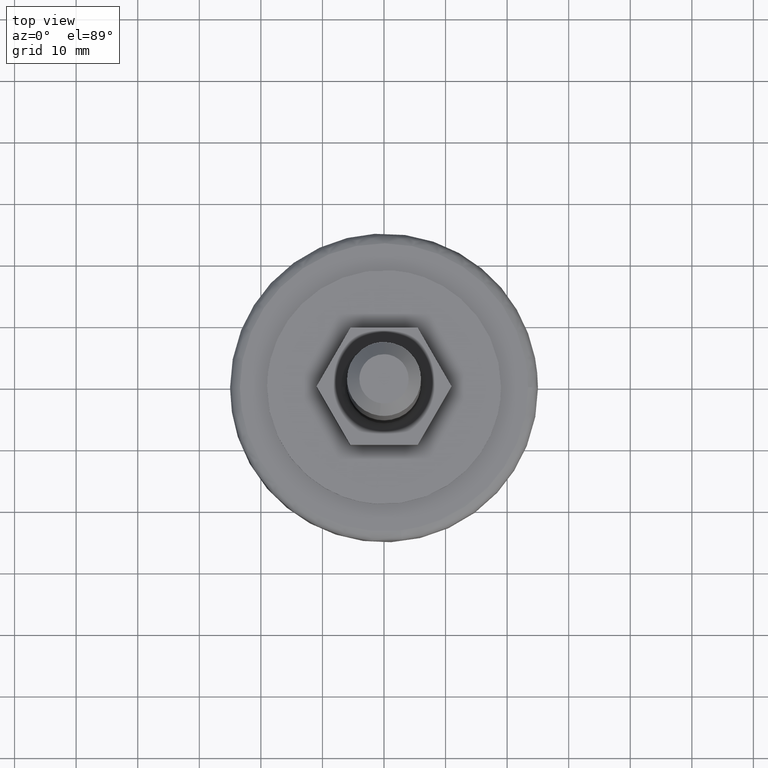
[diagram: clean part render]
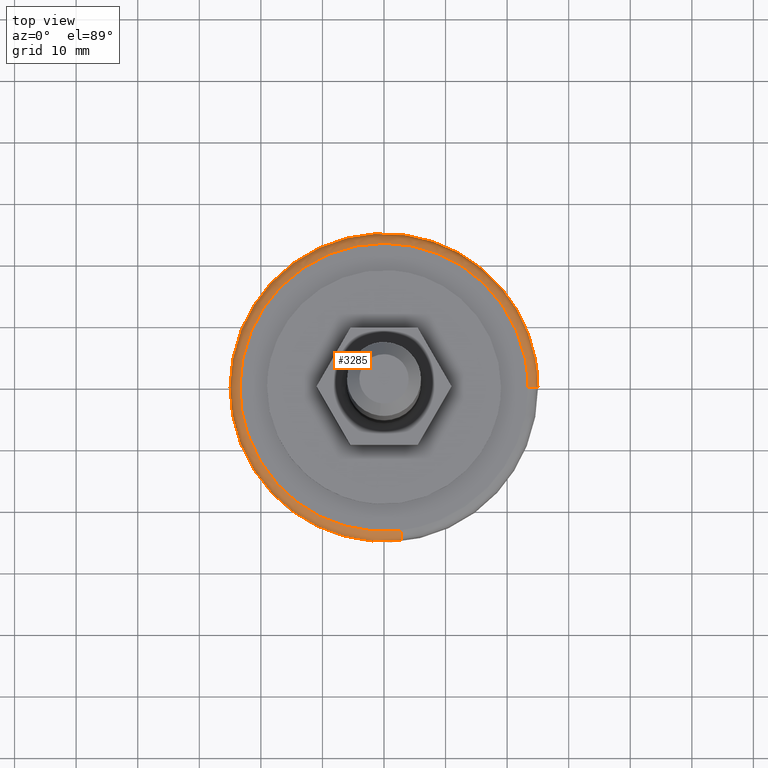
[diagram: same view with one face highlighted and labeled with its STEP entity id]
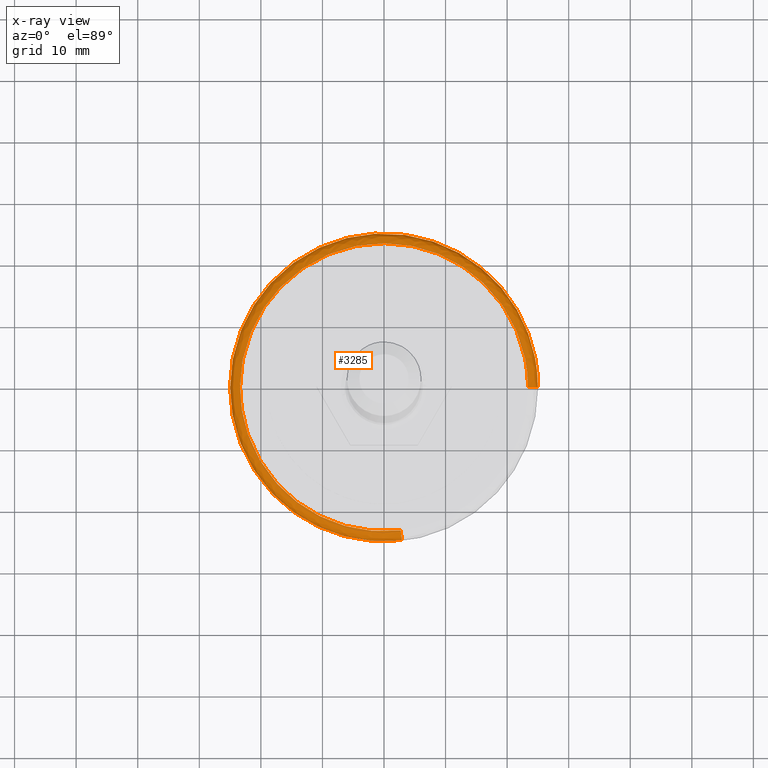
[diagram: x-ray of the same camera — body ghosted, the highlighted face saturated]
A machine part, top view. The second image highlights one B-rep face of the part: STEP entity #3285.
The next image is the same camera in x-ray: the body ghosted, the highlighted face saturated — about 0% of this face is hidden behind the body in this view.
In plain terms, the highlighted face is a freeform B-spline surface patch.
Its self-contained STEP definition (entity closure, byte-faithful):
#2635=CARTESIAN_POINT('',(23.403593343529121,8.790439045383224,14.900000000046250));
#2636=VERTEX_POINT('',#2635);
#2637=CARTESIAN_POINT('',(25.0,0.0,14.900000000071669));
#2638=VERTEX_POINT('',#2637);
#2639=CARTESIAN_POINT('',(23.403593343529113,8.790439045383224,14.900000000046250));
#2640=CARTESIAN_POINT('',(24.999999999999993,4.540178960989693,14.900000000058618));
#2641=CARTESIAN_POINT('',(25.0,0.0,14.900000000071669));
#2649=(BOUNDED_CURVE()B_SPLINE_CURVE(2,(#2639,#2640,#2641),.UNSPECIFIED.,.F.,.U.)B_SPLINE_CURVE_WITH_KNOTS((3,3),(0.440284240510419,0.500000000000000),.UNSPECIFIED.)CURVE()GEOMETRIC_REPRESENTATION_ITEM()RATIONAL_B_SPLINE_CURVE((0.893499639823775,0.930038635956827,1.0))REPRESENTATION_ITEM(''));
#2650=EDGE_CURVE('',#2636,#2638,#2649,.T.);
#2652=CARTESIAN_POINT('',(2.886605733205624,-24.832790969623691,14.900000000059940));
#2653=VERTEX_POINT('',#2652);
#2667=CARTESIAN_POINT('',(-25.0,0.0,14.899999999999800));
#2668=VERTEX_POINT('',#2667);
#2669=CARTESIAN_POINT('',(2.886605733205624,-24.832790969623691,14.900000000059942));
#2670=CARTESIAN_POINT('',(1.448145727475993,-25.0,14.899999999999805));
#2671=CARTESIAN_POINT('',(0.0,-25.0,14.899999999999800));
#2672=CARTESIAN_POINT('',(-25.000000000000004,-25.000000000000004,14.899999999999807));
#2673=CARTESIAN_POINT('',(-25.0,0.0,14.899999999999800));
#2681=(BOUNDED_CURVE()B_SPLINE_CURVE(2,(#2669,#2670,#2671,#2672,#2673),.UNSPECIFIED.,.F.,.U.)B_SPLINE_CURVE_WITH_KNOTS((3,2,3),(0.729999999999608,0.750000000000000,1.0),.UNSPECIFIED.)CURVE()GEOMETRIC_REPRESENTATION_ITEM()RATIONAL_B_SPLINE_CURVE((0.956886118189888,0.976568542494464,1.0,0.707106781186547,1.0))REPRESENTATION_ITEM(''));
#2682=EDGE_CURVE('',#2653,#2668,#2681,.T.);
#2684=CARTESIAN_POINT('',(-1.526193271428666,24.953371197051428,14.900000000000020));
#2685=VERTEX_POINT('',#2684);
#2686=CARTESIAN_POINT('',(-25.0,0.0,14.899999999999800));
#2687=CARTESIAN_POINT('',(-25.000000000000004,23.517670761993944,14.899999999999794));
#2688=CARTESIAN_POINT('',(-1.526193271428666,24.953371197051425,14.900000000000013));
#2696=(BOUNDED_CURVE()B_SPLINE_CURVE(2,(#2686,#2687,#2688),.UNSPECIFIED.,.F.,.U.)B_SPLINE_CURVE_WITH_KNOTS((3,3),(0.0,0.239333102037472),.UNSPECIFIED.)CURVE()GEOMETRIC_REPRESENTATION_ITEM()RATIONAL_B_SPLINE_CURVE((1.0,0.719603829502545,0.976072341281762))REPRESENTATION_ITEM(''));
#2697=EDGE_CURVE('',#2668,#2685,#2696,.T.);
#2775=CARTESIAN_POINT('',(-1.526193271428666,24.953371197051425,14.900000000000013));
#2776=CARTESIAN_POINT('',(-0.763808945650802,25.000000000000004,14.899999999999798));
#2777=CARTESIAN_POINT('',(0.0,25.0,14.899999999999800));
#2778=CARTESIAN_POINT('',(17.315248044053167,24.999999999999996,14.899999999999801));
#2779=CARTESIAN_POINT('',(23.403593343529113,8.790439045383224,14.900000000046250));
#2787=(BOUNDED_CURVE()B_SPLINE_CURVE(2,(#2775,#2776,#2777,#2778,#2779),.UNSPECIFIED.,.F.,.U.)B_SPLINE_CURVE_WITH_KNOTS((3,2,3),(0.239333102037472,0.250000000000000,0.440284240510419),.UNSPECIFIED.)CURVE()GEOMETRIC_REPRESENTATION_ITEM()RATIONAL_B_SPLINE_CURVE((0.976072341281762,0.987502951684003,1.0,0.777068145229720,0.893499639823775))REPRESENTATION_ITEM(''));
#2788=EDGE_CURVE('',#2685,#2636,#2787,.T.);
#3182=CARTESIAN_POINT('',(2.689048295053789,-23.133273484862499,16.496147733297967));
#3183=CARTESIAN_POINT('',(1.349035557294534,-23.289038684724051,16.496147733297974));
#3184=CARTESIAN_POINT('',(2.851990E-015,-23.289038684724058,16.496147733297963));
#3185=CARTESIAN_POINT('',(-23.289038684724055,-23.289038684724055,16.496147733297960));
#3186=CARTESIAN_POINT('',(-23.289038684724058,-4.277986E-015,16.496147733297963));
#3187=CARTESIAN_POINT('',(-23.289038684724055,23.289038684724055,16.496147733297960));
#3188=CARTESIAN_POINT('',(-5.703981E-015,23.289038684724058,16.496147733297963));
#3189=CARTESIAN_POINT('',(23.289038684724055,23.289038684724069,16.496147733297960));
#3190=CARTESIAN_POINT('',(23.289038684724058,7.129976E-015,16.496147733297963));
#3191=CARTESIAN_POINT('',(2.900964750253706,-24.956342755540739,16.623737590489640));
#3192=CARTESIAN_POINT('',(1.455349316614644,-25.124383379781584,16.623737590489633));
#3193=CARTESIAN_POINT('',(3.076748E-015,-25.124383379781587,16.623737590489636));
#3194=CARTESIAN_POINT('',(-25.124383379781577,-25.124383379781577,16.623737590489636));
#3195=CARTESIAN_POINT('',(-25.124383379781587,-4.615122E-015,16.623737590489636));
#3196=CARTESIAN_POINT('',(-25.124383379781577,25.124383379781577,16.623737590489636));
#3197=CARTESIAN_POINT('',(-6.153496E-015,25.124383379781587,16.623737590489636));
#3198=CARTESIAN_POINT('',(25.124383379781577,25.124383379781577,16.623737590489636));
#3199=CARTESIAN_POINT('',(25.124383379781587,7.691870E-015,16.623737590489636));
#3200=CARTESIAN_POINT('',(2.886153322525312,-24.828923397185438,14.788440816107107));
#3201=CARTESIAN_POINT('',(1.447918753654264,-24.996106058032844,14.788440816107094));
#3202=CARTESIAN_POINT('',(3.061039E-015,-24.996106058032833,14.788440816107096));
#3203=CARTESIAN_POINT('',(-24.996106058032819,-24.996106058032836,14.788440816107089));
#3204=CARTESIAN_POINT('',(-24.996106058032833,-4.591559E-015,14.788440816107096));
#3205=CARTESIAN_POINT('',(-24.996106058032836,24.996106058032819,14.788440816107089));
#3206=CARTESIAN_POINT('',(-6.122078E-015,24.996106058032833,14.788440816107096));
#3207=CARTESIAN_POINT('',(24.996106058032819,24.996106058032836,14.788440816107089));
#3208=CARTESIAN_POINT('',(24.996106058032833,7.652598E-015,14.788440816107096));
#3216=(BOUNDED_SURFACE()B_SPLINE_SURFACE(2,2,((#3182,#3191,#3200),(#3183,#3192,#3201),(#3184,#3193,#3202),(#3185,#3194,#3203),(#3186,#3195,#3204),(#3187,#3196,#3205),(#3188,#3197,#3206),(#3189,#3198,#3207),(#3190,#3199,#3208)),.UNSPECIFIED.,.F.,.F.,.U.)B_SPLINE_SURFACE_WITH_KNOTS((3,2,2,2,3),(3,3),(0.0,3.313189203734652,44.728093746748577,86.142998289762502,127.557902832776410),(0.0,2.915793592116155),.UNSPECIFIED.)GEOMETRIC_REPRESENTATION_ITEM()RATIONAL_B_SPLINE_SURFACE(((0.876475879120516,0.573569827707571,0.871620965553409),(0.894504310949818,0.585367716028864,0.889549535560650),(0.915966725895530,0.599412818621935,0.910893067406455),(0.647686283221969,0.423848868777712,0.644098664898920),(0.915966725895530,0.599412818621935,0.910893067406455),(0.647686283221969,0.423848868777712,0.644098664898920),(0.915966725895530,0.599412818621935,0.910893067406455),(0.647686283221969,0.423848868777712,0.644098664898920),(0.915966725895530,0.599412818621935,0.910893067406455)))REPRESENTATION_ITEM('')SURFACE());
#3217=ORIENTED_EDGE('',*,*,#2682,.F.);
#3218=CARTESIAN_POINT('',(2.701862969862764,-23.243492350498531,16.500000000000000));
#3219=VERTEX_POINT('',#3218);
#3220=CARTESIAN_POINT('',(2.701862969862764,-23.243492350498524,16.500000000000000));
#3221=CARTESIAN_POINT('',(2.886605733162984,-24.832790969507762,16.499999993350450));
#3222=CARTESIAN_POINT('',(2.886605733205625,-24.832790969623691,14.900000000059949));
#3230=(BOUNDED_CURVE()B_SPLINE_CURVE(2,(#3220,#3221,#3222),.UNSPECIFIED.,.F.,.U.)B_SPLINE_CURVE_WITH_KNOTS((3,3),(-1.736413116770895,-0.276558718092506),.UNSPECIFIED.)CURVE()GEOMETRIC_REPRESENTATION_ITEM()RATIONAL_B_SPLINE_CURVE((0.850203274823247,0.599621899952830,0.845789311871424))REPRESENTATION_ITEM(''));
#3231=EDGE_CURVE('',#3219,#2653,#3230,.T.);
#3232=ORIENTED_EDGE('',*,*,#3231,.F.);
#3233=CARTESIAN_POINT('',(-23.399999999999999,0.0,16.500000000000000));
#3234=VERTEX_POINT('',#3233);
#3235=CARTESIAN_POINT('',(2.701862969862764,-23.243492350498528,16.500000000000000));
#3236=CARTESIAN_POINT('',(1.355464404148277,-23.399999999999999,16.500000000000000));
#3237=CARTESIAN_POINT('',(0.0,-23.399999999999999,16.500000000000000));
#3238=CARTESIAN_POINT('',(-23.400000000000009,-23.400000000000009,16.499999999999993));
#3239=CARTESIAN_POINT('',(-23.399999999999999,0.0,16.500000000000000));
#3247=(BOUNDED_CURVE()B_SPLINE_CURVE(2,(#3235,#3236,#3237,#3238,#3239),.UNSPECIFIED.,.F.,.U.)B_SPLINE_CURVE_WITH_KNOTS((3,2,3),(0.729999999953055,0.750000000000000,1.0),.UNSPECIFIED.)CURVE()GEOMETRIC_REPRESENTATION_ITEM()RATIONAL_B_SPLINE_CURVE((0.956886118098261,0.976568542439924,1.0,0.707106781186548,1.0))REPRESENTATION_ITEM(''));
#3248=EDGE_CURVE('',#3219,#3234,#3247,.T.);
#3249=ORIENTED_EDGE('',*,*,#3248,.T.);
#3250=CARTESIAN_POINT('',(23.400000000021940,0.0,16.500000000000000));
#3251=VERTEX_POINT('',#3250);
#3252=CARTESIAN_POINT('',(-23.399999999999999,0.0,16.500000000000000));
#3253=CARTESIAN_POINT('',(-23.400000000000009,23.400000000000009,16.499999999999993));
#3254=CARTESIAN_POINT('',(0.0,23.399999999999999,16.500000000000000));
#3255=CARTESIAN_POINT('',(23.400000000000009,23.400000000000009,16.499999999999993));
#3256=CARTESIAN_POINT('',(23.400000000021940,0.0,16.500000000000000));
#3264=(BOUNDED_CURVE()B_SPLINE_CURVE(2,(#3252,#3253,#3254,#3255,#3256),.UNSPECIFIED.,.F.,.U.)B_SPLINE_CURVE_WITH_KNOTS((3,2,3),(0.0,0.250000000000000,0.500000000000000),.UNSPECIFIED.)CURVE()GEOMETRIC_REPRESENTATION_ITEM()RATIONAL_B_SPLINE_CURVE((1.0,0.707106781186548,1.0,0.707106781186548,1.0))REPRESENTATION_ITEM(''));
#3265=EDGE_CURVE('',#3234,#3251,#3264,.T.);
#3266=ORIENTED_EDGE('',*,*,#3265,.T.);
#3267=CARTESIAN_POINT('',(23.400000000021944,0.0,16.500000000000007));
#3268=CARTESIAN_POINT('',(24.999999999856445,0.0,16.499999999912227));
#3269=CARTESIAN_POINT('',(24.999999999999996,0.0,14.900000000071673));
#3277=(BOUNDED_CURVE()B_SPLINE_CURVE(2,(#3267,#3268,#3269),.UNSPECIFIED.,.F.,.U.)B_SPLINE_CURVE_WITH_KNOTS((3,3),(-1.736413121015391,-0.276558718107601),.UNSPECIFIED.)CURVE()GEOMETRIC_REPRESENTATION_ITEM()RATIONAL_B_SPLINE_CURVE((0.888510409042180,0.626638727264115,0.883897567106109))REPRESENTATION_ITEM(''));
#3278=EDGE_CURVE('',#3251,#2638,#3277,.T.);
#3279=ORIENTED_EDGE('',*,*,#3278,.T.);
#3280=ORIENTED_EDGE('',*,*,#2650,.F.);
#3281=ORIENTED_EDGE('',*,*,#2788,.F.);
#3282=ORIENTED_EDGE('',*,*,#2697,.F.);
#3283=EDGE_LOOP('',(#3217,#3232,#3249,#3266,#3279,#3280,#3281,#3282));
#3284=FACE_OUTER_BOUND('',#3283,.T.);
#3285=ADVANCED_FACE('',(#3284),#3216,.T.);